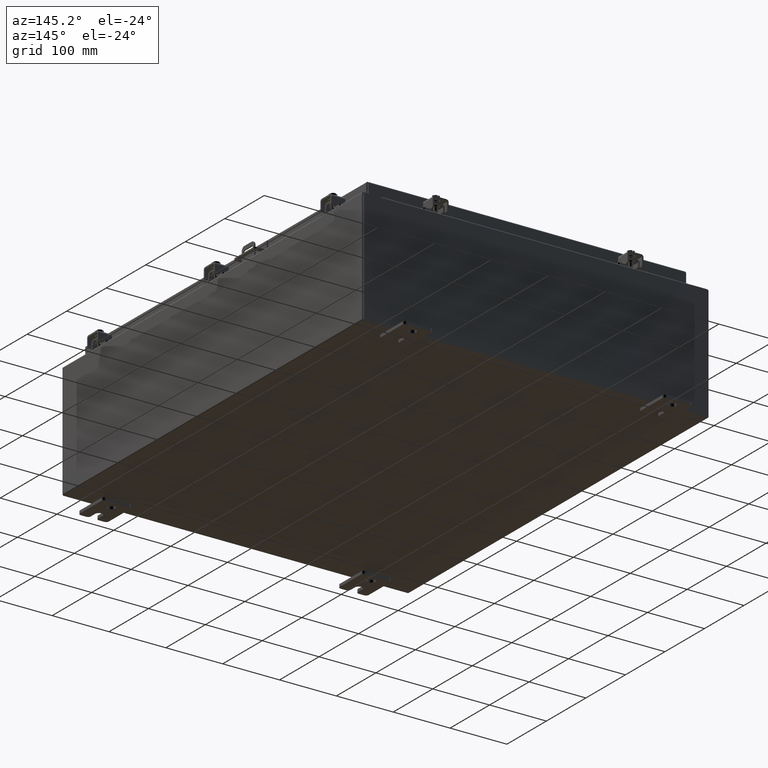
[diagram: clean part render]
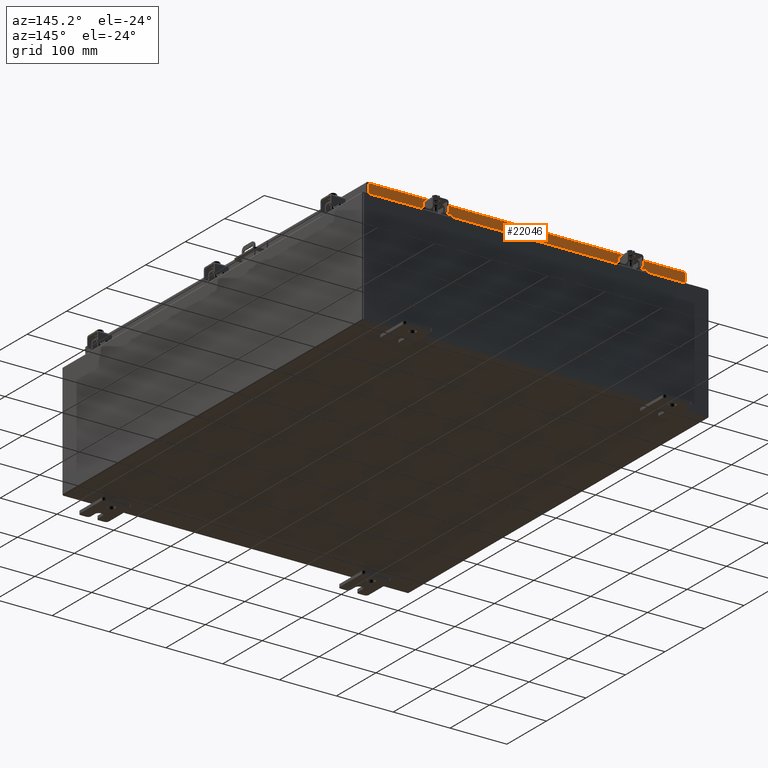
[diagram: same view with one face highlighted and labeled with its STEP entity id]
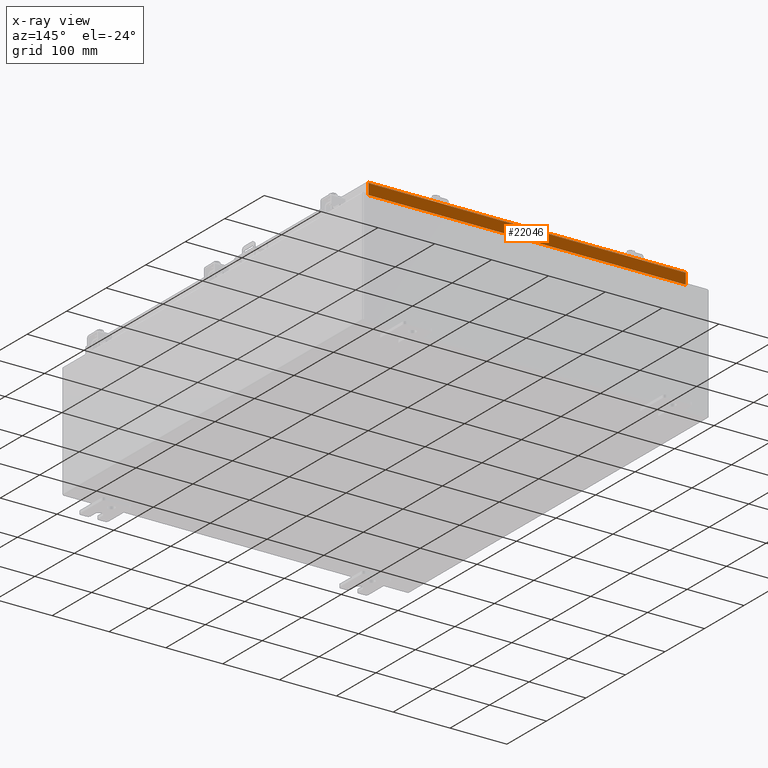
[diagram: x-ray of the same camera — body ghosted, the highlighted face saturated]
A machine part, auxiliary view. The second image highlights one B-rep face of the part: STEP entity #22046.
The next image is the same camera in x-ray: the body ghosted, the highlighted face saturated — about 0% of this face is hidden behind the body in this view.
In plain terms, the highlighted planar face has unit normal (0, -1, -0).
Its self-contained STEP definition (entity closure, byte-faithful):
#2172 = EDGE_CURVE ( 'NONE', #29560, #16252, #23835, .T. ) ;
#4442 = VECTOR ( 'NONE', #24579, 39.37007874015748100 ) ;
#4713 = VECTOR ( 'NONE', #25981, 39.37007874015748100 ) ;
#4933 = CARTESIAN_POINT ( 'NONE',  ( 10.23915786437626700, 14.09399999999999900, -0.8500000000000032000 ) ) ;
#5223 = EDGE_CURVE ( 'NONE', #11277, #18428, #13174, .T. ) ;
#5331 = DIRECTION ( 'NONE',  ( -0.0000000000000000000, 2.818880942772350300E-015, -1.000000000000000000 ) ) ;
#5492 = CARTESIAN_POINT ( 'NONE',  ( 10.98915786437626900, 14.09399999999999900, 4.043135030623109600E-014 ) ) ;
#5734 = ORIENTED_EDGE ( 'NONE', *, *, #37518, .F. ) ;
#7006 = CARTESIAN_POINT ( 'NONE',  ( -11.07799999999999900, 14.09399999999999900, -0.08770000000000026400 ) ) ;
#7048 = DIRECTION ( 'NONE',  ( 0.0000000000000000000, 2.818880942772350300E-015, -1.000000000000000000 ) ) ;
#7089 = VERTEX_POINT ( 'NONE', #26459 ) ;
#9505 = CARTESIAN_POINT ( 'NONE',  ( 10.98915786437626700, 14.09400000000000100, -0.8499999999999999800 ) ) ;
#11277 = VERTEX_POINT ( 'NONE', #32383 ) ;
#12323 = CARTESIAN_POINT ( 'NONE',  ( -11.07799999999999900, 14.09400000000000100, -0.8500000000000020900 ) ) ;
#13174 = LINE ( 'NONE', #26855, #20990 ) ;
#13722 = VERTEX_POINT ( 'NONE', #19571 ) ;
#14667 = EDGE_CURVE ( 'NONE', #7089, #16252, #27184, .T. ) ;
#15276 = DIRECTION ( 'NONE',  ( 1.000000000000000000, -4.379057701015054300E-047, 1.233005954894504400E-016 ) ) ;
#15973 = FACE_OUTER_BOUND ( 'NONE', #23608, .T. ) ;
#16252 = VERTEX_POINT ( 'NONE', #9505 ) ;
#17939 = DIRECTION ( 'NONE',  ( 1.000000000000000000, -0.0000000000000000000, -0.0000000000000000000 ) ) ;
#18428 = VERTEX_POINT ( 'NONE', #33143 ) ;
#18728 = PLANE ( 'NONE',  #29778 ) ;
#19571 = CARTESIAN_POINT ( 'NONE',  ( -10.98915786437626700, 14.09399999999999900, -0.08770000000000026400 ) ) ;
#19918 = CARTESIAN_POINT ( 'NONE',  ( -10.98915786437626900, 14.09399999999999900, -0.07470000000000015500 ) ) ;
#20972 = DIRECTION ( 'NONE',  ( 1.000000000000000000, -4.379057701015054300E-047, 1.233005954894504400E-016 ) ) ;
#20990 = VECTOR ( 'NONE', #20972, 39.37007874015748100 ) ;
#22046 = ADVANCED_FACE ( 'NONE', ( #15973 ), #18728, .F. ) ;
#22619 = ORIENTED_EDGE ( 'NONE', *, *, #5223, .F. ) ;
#22771 = ORIENTED_EDGE ( 'NONE', *, *, #33086, .F. ) ;
#23608 = EDGE_LOOP ( 'NONE', ( #24713, #32936, #24158, #5734, #22619, #22771 ) ) ;
#23835 = LINE ( 'NONE', #12323, #37595 ) ;
#24158 = ORIENTED_EDGE ( 'NONE', *, *, #2172, .F. ) ;
#24579 = DIRECTION ( 'NONE',  ( -1.000000000000000000, -3.475696988576942200E-031, -9.473942235605600700E-046 ) ) ;
#24631 = DIRECTION ( 'NONE',  ( 3.475696988576941300E-031, -1.000000000000000000, -2.818880942772350300E-015 ) ) ;
#24713 = ORIENTED_EDGE ( 'NONE', *, *, #36519, .F. ) ;
#25981 = DIRECTION ( 'NONE',  ( 0.0000000000000000000, 2.818880942772350300E-015, -1.000000000000000000 ) ) ;
#26459 = CARTESIAN_POINT ( 'NONE',  ( 10.98915786437626700, 14.09399999999999900, -0.08770000000000026400 ) ) ;
#26855 = CARTESIAN_POINT ( 'NONE',  ( -11.07799999999999900, 14.09400000000000100, -0.8500000000000020900 ) ) ;
#26905 = LINE ( 'NONE', #7006, #4442 ) ;
#27184 = LINE ( 'NONE', #5492, #4713 ) ;
#29560 = VERTEX_POINT ( 'NONE', #4933 ) ;
#29778 = AXIS2_PLACEMENT_3D ( 'NONE', #36300, #24631, #7048 ) ;
#29915 = LINE ( 'NONE', #19918, #35896 ) ;
#31886 = LINE ( 'NONE', #35536, #37843 ) ;
#32383 = CARTESIAN_POINT ( 'NONE',  ( -10.98915786437626900, 14.09400000000000100, -0.8500000000000020900 ) ) ;
#32936 = ORIENTED_EDGE ( 'NONE', *, *, #14667, .T. ) ;
#33086 = EDGE_CURVE ( 'NONE', #13722, #11277, #29915, .T. ) ;
#33143 = CARTESIAN_POINT ( 'NONE',  ( -10.23915786437627100, 14.09399999999999900, -0.8500000000000032000 ) ) ;
#35536 = CARTESIAN_POINT ( 'NONE',  ( -10.23915786437627100, 14.09399999999999900, -0.8500000000000032000 ) ) ;
#35896 = VECTOR ( 'NONE', #5331, 39.37007874015748100 ) ;
#36300 = CARTESIAN_POINT ( 'NONE',  ( 0.0000000000000000000, 14.09399999999999900, 4.043135030623109600E-014 ) ) ;
#36519 = EDGE_CURVE ( 'NONE', #7089, #13722, #26905, .T. ) ;
#37518 = EDGE_CURVE ( 'NONE', #18428, #29560, #31886, .T. ) ;
#37595 = VECTOR ( 'NONE', #15276, 39.37007874015748100 ) ;
#37843 = VECTOR ( 'NONE', #17939, 39.37007874015748100 ) ;